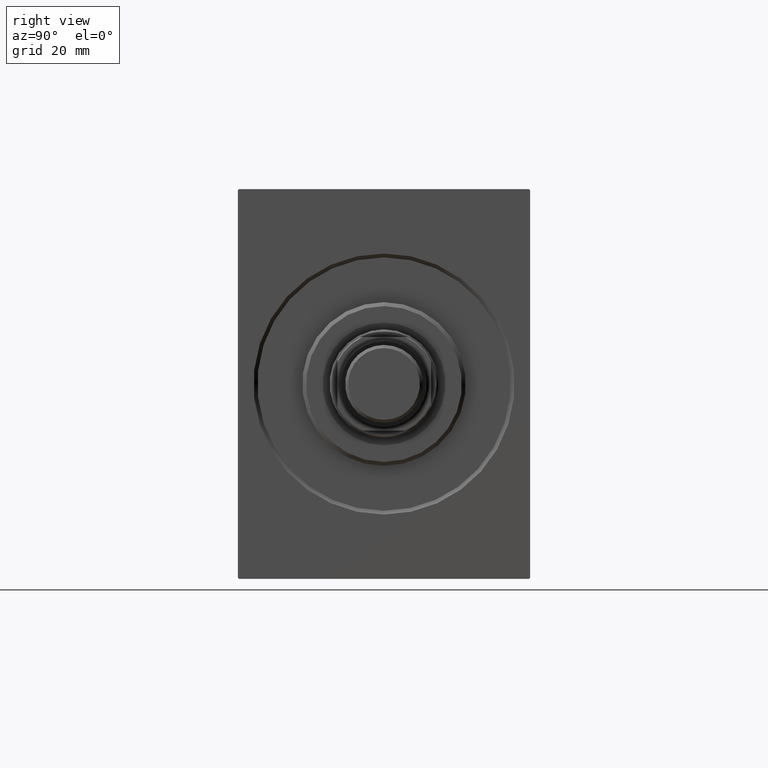
[diagram: clean part render]
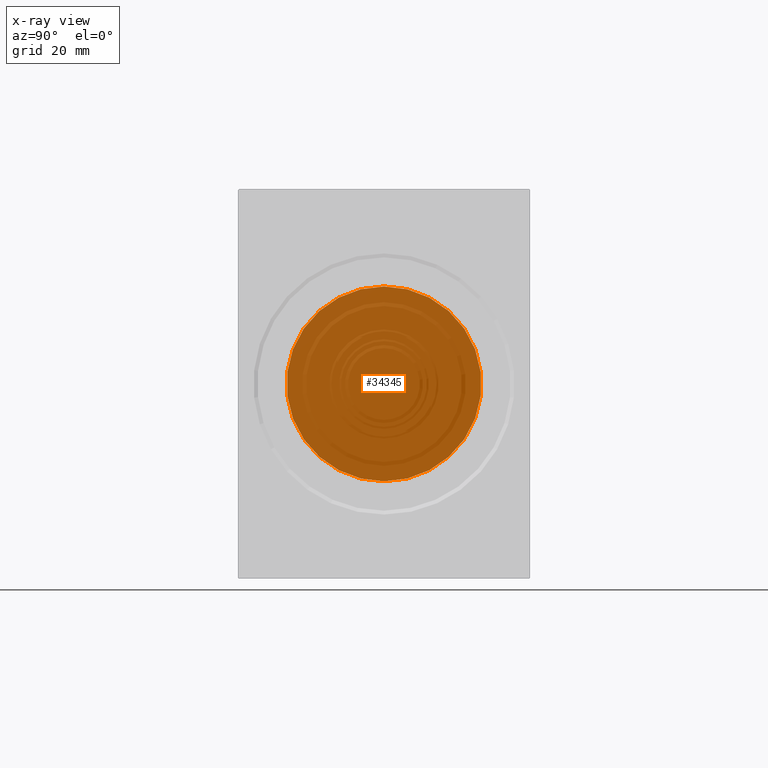
[diagram: x-ray — body ghosted, one internal face saturated and labeled with its STEP entity id]
A machine part, right view, then the same camera in x-ray: the body is ghosted and one INTERNAL B-rep face — a face not visible from any outside direction — is saturated and labeled: STEP entity #34345.
In plain terms, the highlighted planar face has unit normal (1, 0, -0).
Its self-contained STEP definition (entity closure, byte-faithful):
#2818 = CIRCLE ( 'NONE', #32933, 25.00000000000000000 ) ;
#3741 = CARTESIAN_POINT ( 'NONE',  ( 84.00000000000000000, 0.000000000000000000, 0.000000000000000000 ) ) ;
#5516 = CARTESIAN_POINT ( 'NONE',  ( 84.00000000000000000, 3.061616997868382254E-15, -25.00000000000000000 ) ) ;
#7532 = DIRECTION ( 'NONE',  ( 0.000000000000000000, 0.000000000000000000, 1.000000000000000000 ) ) ;
#7543 = EDGE_LOOP ( 'NONE', ( #39808, #36356 ) ) ;
#11211 = VERTEX_POINT ( 'NONE', #5516 ) ;
#13403 = DIRECTION ( 'NONE',  ( -1.000000000000000000, 0.000000000000000000, 0.000000000000000000 ) ) ;
#16137 = AXIS2_PLACEMENT_3D ( 'NONE', #20139, #32522, #43404 ) ;
#17274 = EDGE_CURVE ( 'NONE', #11211, #18415, #29223, .T. ) ;
#17631 = CARTESIAN_POINT ( 'NONE',  ( 84.00000000000000000, 0.000000000000000000, 25.00000000000000000 ) ) ;
#18415 = VERTEX_POINT ( 'NONE', #17631 ) ;
#20139 = CARTESIAN_POINT ( 'NONE',  ( 84.00000000000000000, 0.000000000000000000, 0.000000000000000000 ) ) ;
#23658 = PLANE ( 'NONE',  #16137 ) ;
#27266 = CARTESIAN_POINT ( 'NONE',  ( 84.00000000000000000, 0.000000000000000000, 0.000000000000000000 ) ) ;
#29131 = AXIS2_PLACEMENT_3D ( 'NONE', #3741, #13403, #40181 ) ;
#29223 = CIRCLE ( 'NONE', #29131, 25.00000000000000000 ) ;
#31004 = DIRECTION ( 'NONE',  ( -1.000000000000000000, 0.000000000000000000, 0.000000000000000000 ) ) ;
#32522 = DIRECTION ( 'NONE',  ( -1.000000000000000000, 0.000000000000000000, 0.000000000000000000 ) ) ;
#32933 = AXIS2_PLACEMENT_3D ( 'NONE', #27266, #31004, #7532 ) ;
#34190 = EDGE_CURVE ( 'NONE', #18415, #11211, #2818, .T. ) ;
#34345 = ADVANCED_FACE ( 'NONE', ( #37053 ), #23658, .T. ) ;
#36356 = ORIENTED_EDGE ( 'NONE', *, *, #17274, .T. ) ;
#37053 = FACE_OUTER_BOUND ( 'NONE', #7543, .T. ) ;
#39808 = ORIENTED_EDGE ( 'NONE', *, *, #34190, .T. ) ;
#40181 = DIRECTION ( 'NONE',  ( 0.000000000000000000, 0.000000000000000000, 1.000000000000000000 ) ) ;
#43404 = DIRECTION ( 'NONE',  ( 0.000000000000000000, 0.000000000000000000, 1.000000000000000000 ) ) ;